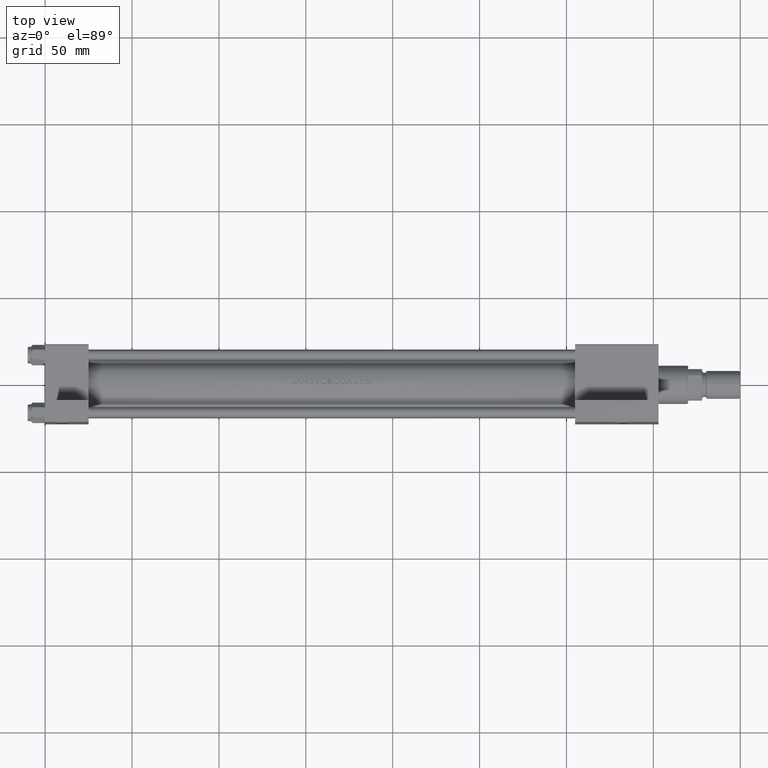
[diagram: clean part render]
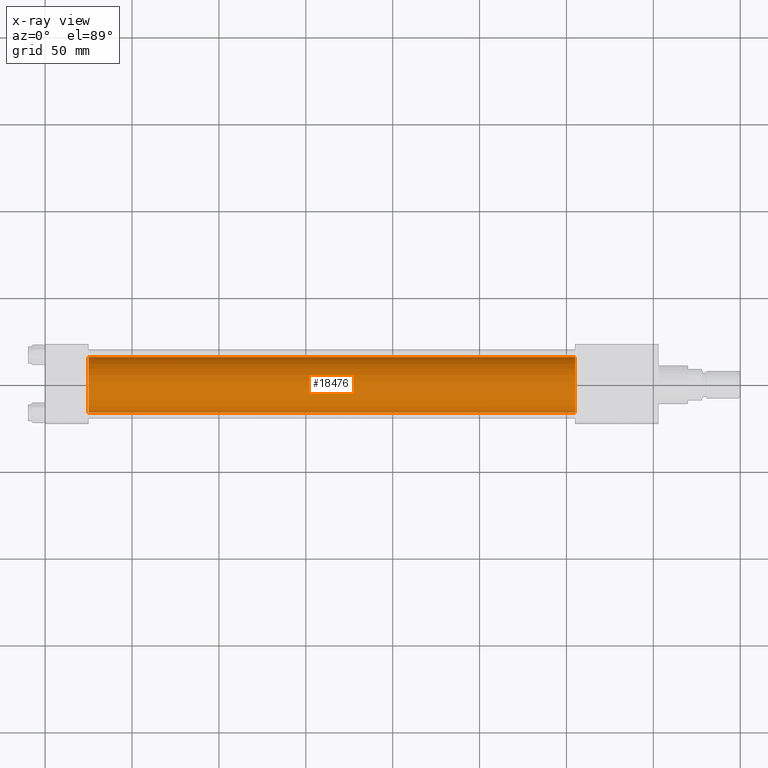
[diagram: x-ray — body ghosted, one internal face saturated and labeled with its STEP entity id]
A machine part, top view, then the same camera in x-ray: the body is ghosted and one INTERNAL B-rep face — a face not visible from any outside direction — is saturated and labeled: STEP entity #18476.
In plain terms, the highlighted cylindrical surface (edge-blend (fillet) strip) has radius 16 mm, axis along (-1, -0, 0).
Its self-contained STEP definition (entity closure, byte-faithful):
#549 = CARTESIAN_POINT ( 'NONE',  ( 25.00000000000000000, 0.000000000000000000, 15.50000000000000355 ) ) ;
#1596 = DIRECTION ( 'NONE',  ( 1.000000000000000000, 0.000000000000000000, 0.000000000000000000 ) ) ;
#3498 = DIRECTION ( 'NONE',  ( -1.000000000000000000, -0.000000000000000000, -0.000000000000000000 ) ) ;
#4071 = VERTEX_POINT ( 'NONE', #37608 ) ;
#4583 = AXIS2_PLACEMENT_3D ( 'NONE', #7169, #14699, #44559 ) ;
#6116 = LINE ( 'NONE', #9292, #29968 ) ;
#6549 = VERTEX_POINT ( 'NONE', #549 ) ;
#7050 = CARTESIAN_POINT ( 'NONE',  ( 305.0000000000000568, 0.000000000000000000, 15.50000000000000355 ) ) ;
#7169 = CARTESIAN_POINT ( 'NONE',  ( 25.00000000000000000, 0.000000000000000000, -0.4999999999999970024 ) ) ;
#7897 = CARTESIAN_POINT ( 'NONE',  ( 305.0000000000000568, 1.959434878635765131E-15, -16.49999999999999645 ) ) ;
#9292 = CARTESIAN_POINT ( 'NONE',  ( 305.0000000000000568, 0.000000000000000000, 15.50000000000000355 ) ) ;
#9887 = CARTESIAN_POINT ( 'NONE',  ( 305.0000000000000568, 1.959434878635765131E-15, -16.49999999999999645 ) ) ;
#12253 = ORIENTED_EDGE ( 'NONE', *, *, #22457, .T. ) ;
#12294 = ORIENTED_EDGE ( 'NONE', *, *, #16165, .F. ) ;
#13206 = EDGE_CURVE ( 'NONE', #25154, #4071, #38000, .T. ) ;
#14699 = DIRECTION ( 'NONE',  ( 1.000000000000000000, 0.000000000000000000, 0.000000000000000000 ) ) ;
#16136 = DIRECTION ( 'NONE',  ( -1.000000000000000000, -0.000000000000000000, -0.000000000000000000 ) ) ;
#16165 = EDGE_CURVE ( 'NONE', #26567, #6549, #6116, .T. ) ;
#16413 = DIRECTION ( 'NONE',  ( 0.000000000000000000, 0.000000000000000000, -1.000000000000000000 ) ) ;
#16655 = ORIENTED_EDGE ( 'NONE', *, *, #31553, .F. ) ;
#18476 = ADVANCED_FACE ( 'NONE', ( #33599 ), #40652, .F. ) ;
#18785 = DIRECTION ( 'NONE',  ( 0.000000000000000000, 0.000000000000000000, 1.000000000000000000 ) ) ;
#20289 = CARTESIAN_POINT ( 'NONE',  ( 305.0000000000000568, 0.000000000000000000, -0.4999999999999970024 ) ) ;
#22457 = EDGE_CURVE ( 'NONE', #26567, #25154, #30958, .T. ) ;
#24088 = DIRECTION ( 'NONE',  ( -1.000000000000000000, -0.000000000000000000, -0.000000000000000000 ) ) ;
#25154 = VERTEX_POINT ( 'NONE', #9887 ) ;
#26567 = VERTEX_POINT ( 'NONE', #7050 ) ;
#28359 = VECTOR ( 'NONE', #16136, 1000.000000000000000 ) ;
#29968 = VECTOR ( 'NONE', #24088, 1000.000000000000000 ) ;
#30958 = CIRCLE ( 'NONE', #47261, 16.00000000000000000 ) ;
#31553 = EDGE_CURVE ( 'NONE', #6549, #4071, #36358, .T. ) ;
#33599 = FACE_OUTER_BOUND ( 'NONE', #44835, .T. ) ;
#36358 = CIRCLE ( 'NONE', #4583, 16.00000000000000000 ) ;
#37484 = CARTESIAN_POINT ( 'NONE',  ( 305.0000000000000568, 0.000000000000000000, -0.4999999999999970024 ) ) ;
#37608 = CARTESIAN_POINT ( 'NONE',  ( 25.00000000000000000, 1.959434878635765131E-15, -16.49999999999999645 ) ) ;
#38000 = LINE ( 'NONE', #7897, #28359 ) ;
#40652 = CYLINDRICAL_SURFACE ( 'NONE', #41686, 16.00000000000000000 ) ;
#41686 = AXIS2_PLACEMENT_3D ( 'NONE', #37484, #3498, #18785 ) ;
#44039 = ORIENTED_EDGE ( 'NONE', *, *, #13206, .T. ) ;
#44559 = DIRECTION ( 'NONE',  ( 0.000000000000000000, 0.000000000000000000, -1.000000000000000000 ) ) ;
#44835 = EDGE_LOOP ( 'NONE', ( #12253, #44039, #16655, #12294 ) ) ;
#47261 = AXIS2_PLACEMENT_3D ( 'NONE', #20289, #1596, #16413 ) ;